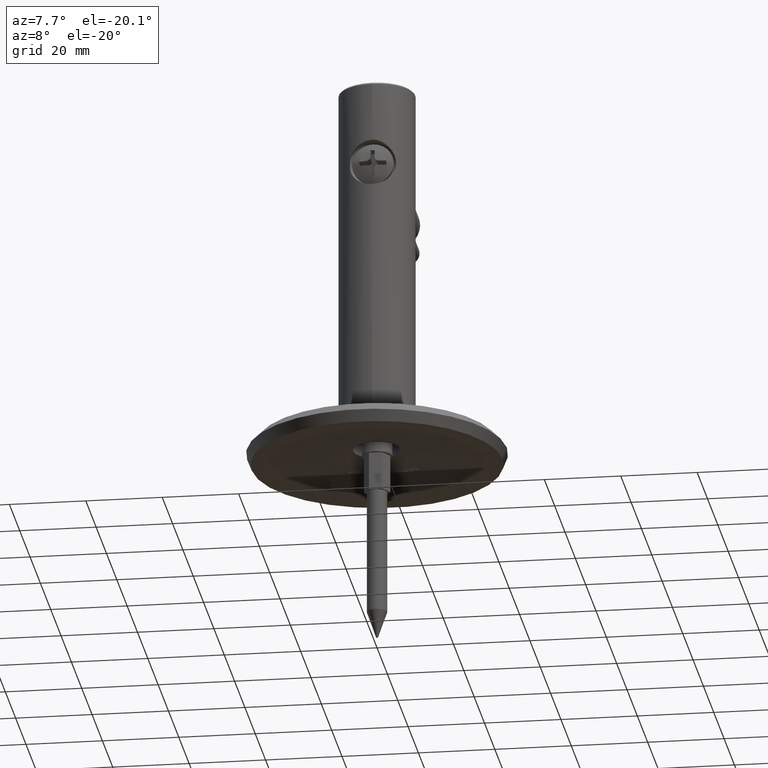
[diagram: clean part render]
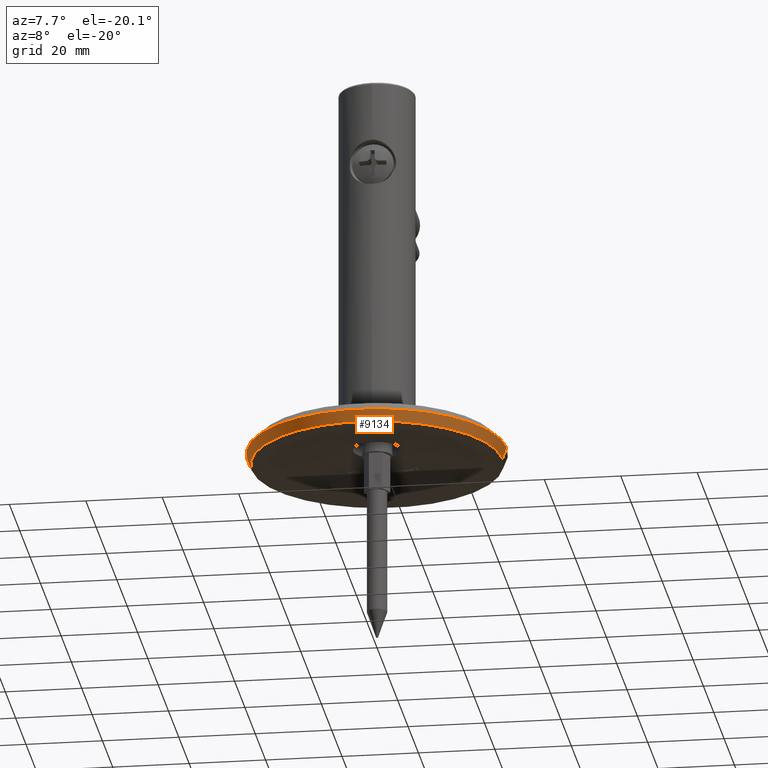
[diagram: same view with one face highlighted and labeled with its STEP entity id]
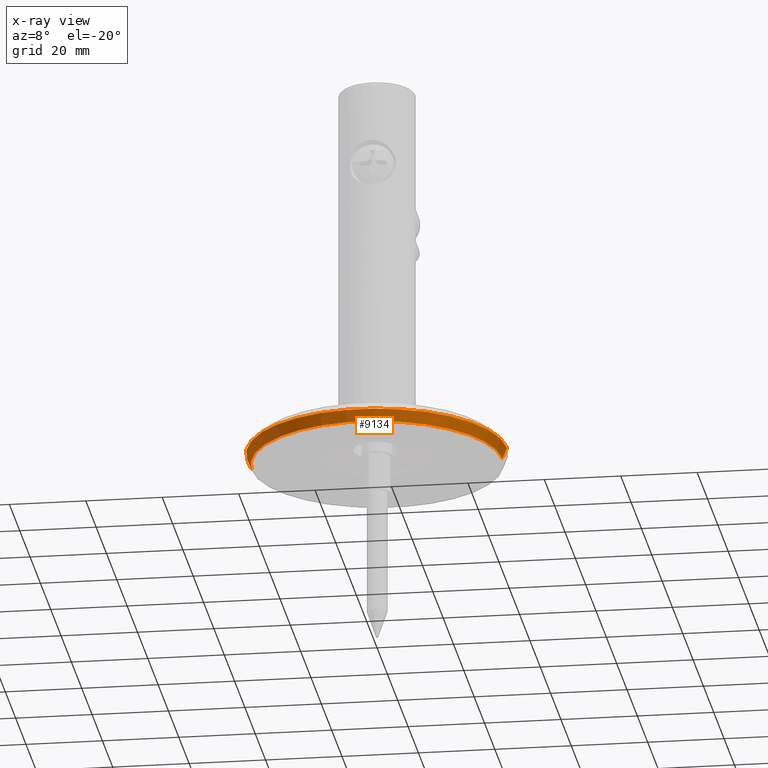
[diagram: x-ray of the same camera — body ghosted, the highlighted face saturated]
A machine part, auxiliary view. The second image highlights one B-rep face of the part: STEP entity #9134.
The next image is the same camera in x-ray: the body ghosted, the highlighted face saturated — about 0% of this face is hidden behind the body in this view.
In plain terms, the highlighted conical surface has half-angle 21.287 deg.
Its self-contained STEP definition (entity closure, byte-faithful):
#543 = DIRECTION ( 'NONE',  ( -1.000000000000000000, 0.000000000000000000, 0.000000000000000000 ) ) ;
#1934 = CARTESIAN_POINT ( 'NONE',  ( 2.157323450251809556E-19, -1.151432000829118785, 0.000000000000000000 ) ) ;
#3427 = VERTEX_POINT ( 'NONE', #6738 ) ;
#3669 = CIRCLE ( 'NONE', #30126, 34.00000000000002842 ) ;
#5492 = AXIS2_PLACEMENT_3D ( 'NONE', #23301, #11429, #11311 ) ;
#6476 = ORIENTED_EDGE ( 'NONE', *, *, #30753, .T. ) ;
#6738 = CARTESIAN_POINT ( 'NONE',  ( -32.83464896222003659, -4.142427981893796129, -4.021084775270976268E-15 ) ) ;
#6924 = CARTESIAN_POINT ( 'NONE',  ( -32.83464896222004370, -4.142427981893799682, 0.000000000000000000 ) ) ;
#9107 = CARTESIAN_POINT ( 'NONE',  ( 32.83464896222006502, -4.142427981893796129, 0.000000000000000000 ) ) ;
#9134 = ADVANCED_FACE ( 'NONE', ( #9275 ), #15763, .T. ) ;
#9275 = FACE_OUTER_BOUND ( 'NONE', #27217, .T. ) ;
#10677 = ORIENTED_EDGE ( 'NONE', *, *, #17174, .F. ) ;
#11311 = DIRECTION ( 'NONE',  ( -1.000000000000000000, 0.000000000000000000, 0.000000000000000000 ) ) ;
#11429 = DIRECTION ( 'NONE',  ( -1.873600393855974325E-19, 1.000000000000000000, 0.000000000000000000 ) ) ;
#13005 = VECTOR ( 'NONE', #21355, 1000.000000000000000 ) ;
#13788 = CARTESIAN_POINT ( 'NONE',  ( -34.00000000000002842, -1.151432000829118785, 0.000000000000000000 ) ) ;
#14247 = DIRECTION ( 'NONE',  ( -1.000000000000000000, 0.000000000000000000, 0.000000000000000000 ) ) ;
#14293 = VERTEX_POINT ( 'NONE', #13788 ) ;
#14828 = CARTESIAN_POINT ( 'NONE',  ( 34.00000000000002842, -1.151432000829118785, 4.163799117101004504E-15 ) ) ;
#15763 = CONICAL_SURFACE ( 'NONE', #18852, 32.83464896222004370, 0.3715259619799057278 ) ;
#17174 = EDGE_CURVE ( 'NONE', #14293, #25687, #3669, .T. ) ;
#18852 = AXIS2_PLACEMENT_3D ( 'NONE', #20145, #30065, #543 ) ;
#19026 = ORIENTED_EDGE ( 'NONE', *, *, #30843, .F. ) ;
#20145 = CARTESIAN_POINT ( 'NONE',  ( 7.761254698396231712E-19, -4.142427981893799682, 0.000000000000000000 ) ) ;
#20196 = CARTESIAN_POINT ( 'NONE',  ( 32.83464896222004370, -4.142427981893799682, 4.021084775270973901E-15 ) ) ;
#20693 = LINE ( 'NONE', #20196, #31337 ) ;
#21355 = DIRECTION ( 'NONE',  ( -0.3630377064735174630, 0.9317744489298084298, 0.000000000000000000 ) ) ;
#22658 = DIRECTION ( 'NONE',  ( 0.3630377064735174630, 0.9317744489298084298, 4.445929652025895394E-17 ) ) ;
#23301 = CARTESIAN_POINT ( 'NONE',  ( 7.761254698396231712E-19, -4.142427981893799682, 0.000000000000000000 ) ) ;
#23405 = EDGE_CURVE ( 'NONE', #24275, #25687, #20693, .T. ) ;
#24275 = VERTEX_POINT ( 'NONE', #9107 ) ;
#25256 = CIRCLE ( 'NONE', #5492, 32.83464896222004370 ) ;
#25687 = VERTEX_POINT ( 'NONE', #14828 ) ;
#27217 = EDGE_LOOP ( 'NONE', ( #6476, #29364, #10677, #19026 ) ) ;
#28889 = DIRECTION ( 'NONE',  ( -1.873600393855974325E-19, 1.000000000000000000, 0.000000000000000000 ) ) ;
#29364 = ORIENTED_EDGE ( 'NONE', *, *, #23405, .T. ) ;
#29416 = LINE ( 'NONE', #6924, #13005 ) ;
#30065 = DIRECTION ( 'NONE',  ( -1.873600393855974325E-19, 1.000000000000000000, 0.000000000000000000 ) ) ;
#30126 = AXIS2_PLACEMENT_3D ( 'NONE', #1934, #28889, #14247 ) ;
#30753 = EDGE_CURVE ( 'NONE', #3427, #24275, #25256, .T. ) ;
#30843 = EDGE_CURVE ( 'NONE', #3427, #14293, #29416, .T. ) ;
#31337 = VECTOR ( 'NONE', #22658, 1000.000000000000000 ) ;